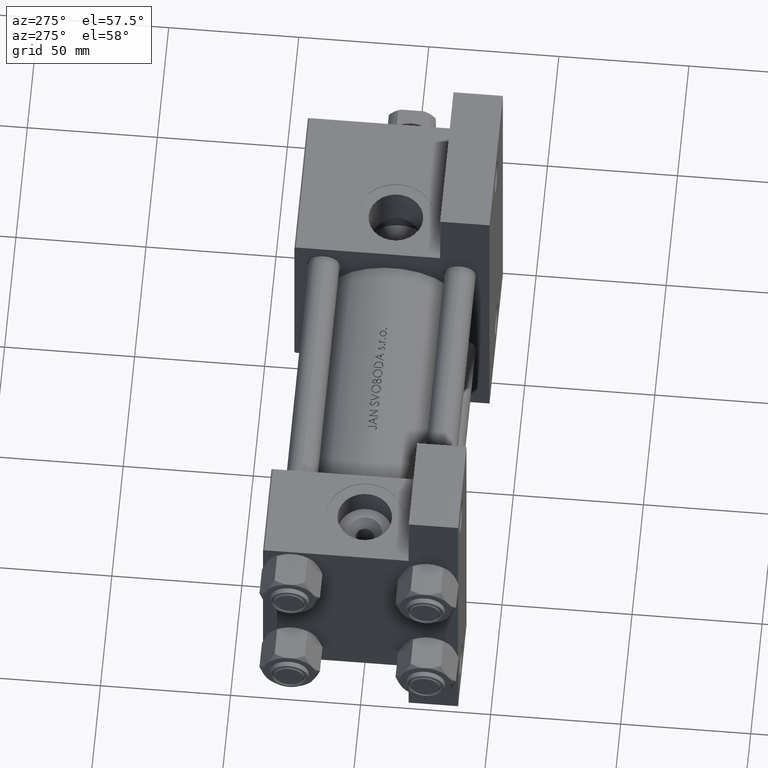
[diagram: clean part render]
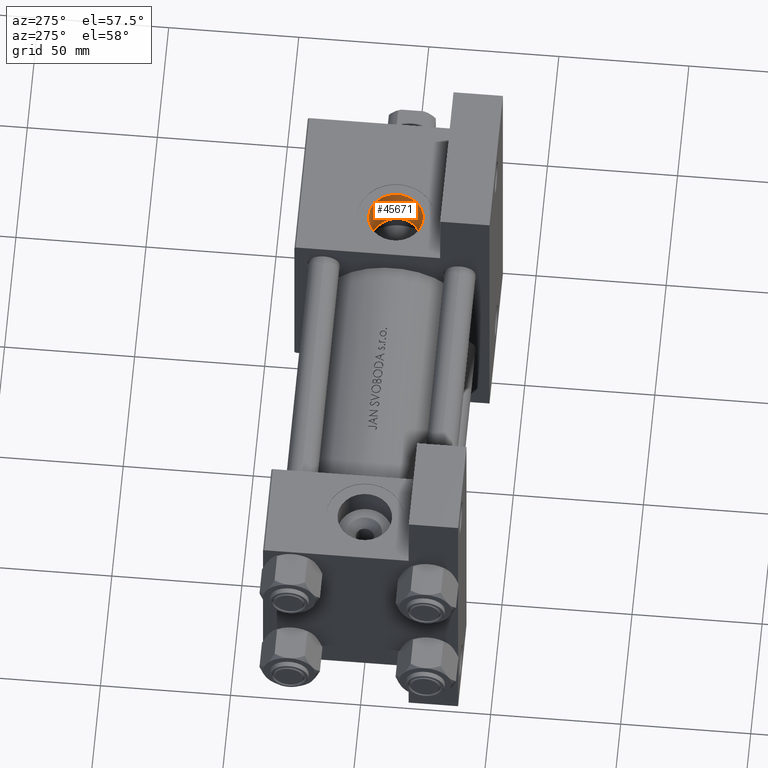
[diagram: same view with one face highlighted and labeled with its STEP entity id]
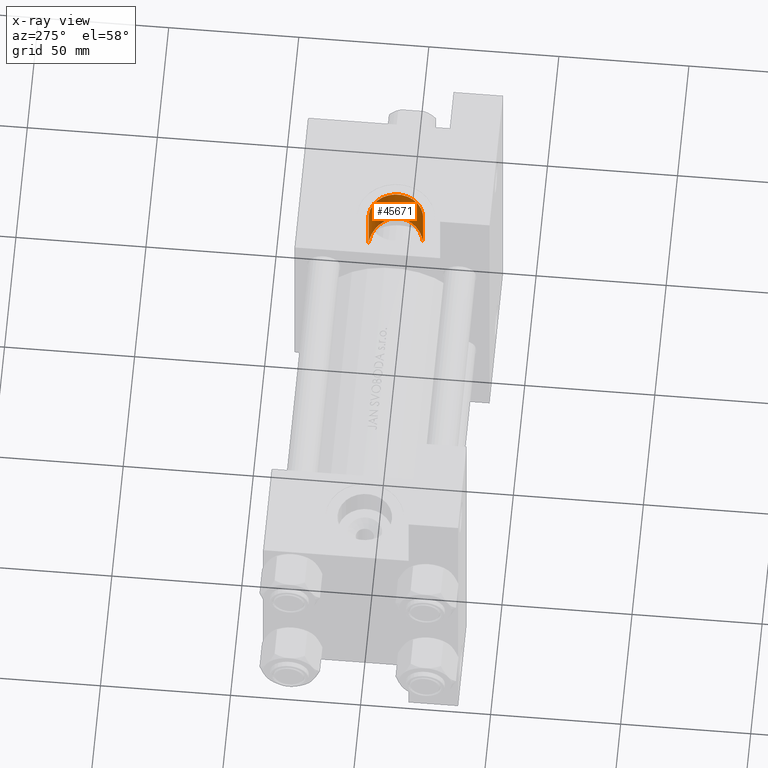
[diagram: x-ray of the same camera — body ghosted, the highlighted face saturated]
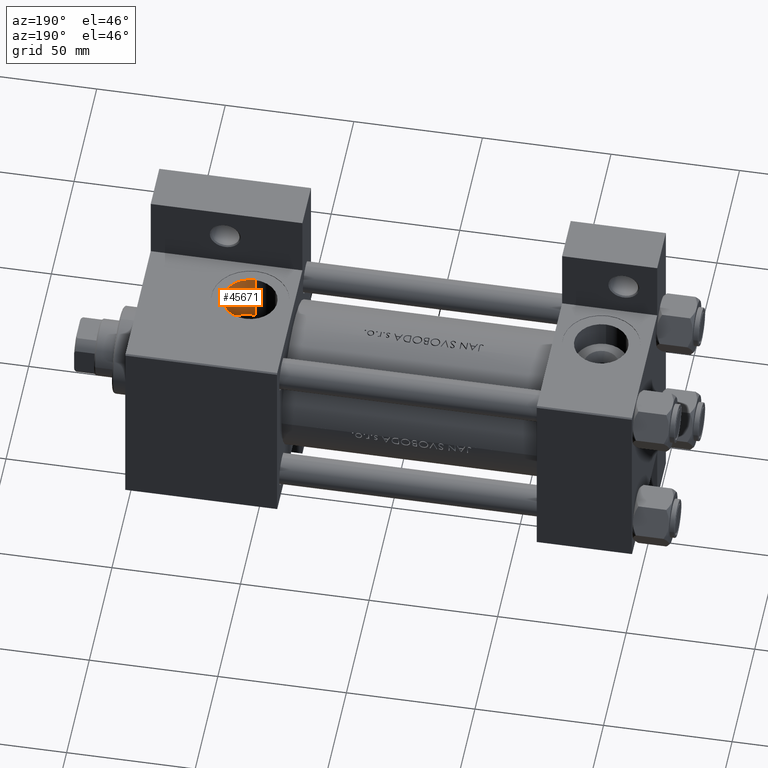
[diagram: same view with one face highlighted and labeled with its STEP entity id]
A machine part, auxiliary view. The second image highlights one B-rep face of the part: STEP entity #45671.
The next image is the same camera in x-ray: the body ghosted, the highlighted face saturated — about 0% of this face is hidden behind the body in this view.
A second angle (auxiliary view) of the same face is appended — the face is thin or edge-on in the first view.
In plain terms, the highlighted cylindrical surface (edge-blend (fillet) strip) has radius 10.48 mm, axis along (-0, -0, 1).
Its self-contained STEP definition (entity closure, byte-faithful):
#735 = CARTESIAN_POINT ( 'NONE',  ( 155.0000000000000284, -17.31154528053461306, 10.47999999999999154 ) ) ;
#1462 = CARTESIAN_POINT ( 'NONE',  ( 165.3507038963579134, -20.46901633175582447, -1.677836523642098010 ) ) ;
#1701 = CARTESIAN_POINT ( 'NONE',  ( 155.0000000000000284, -17.90669148670408362, -10.47999999999998089 ) ) ;
#1955 = CARTESIAN_POINT ( 'NONE',  ( 165.4583245133797220, -20.46430137750835954, 0.7579182357777466406 ) ) ;
#2195 = CARTESIAN_POINT ( 'NONE',  ( 165.4669051482524935, -20.50255402113294068, -0.6300211231001662249 ) ) ;
#5183 = CARTESIAN_POINT ( 'NONE',  ( 161.9208345979154444, -18.70786800614511236, 7.898040897294844598 ) ) ;
#5426 = CARTESIAN_POINT ( 'NONE',  ( 165.3852102648228595, -20.41012014665353291, 1.448585321857994712 ) ) ;
#5927 = CARTESIAN_POINT ( 'NONE',  ( 165.3311065042815642, -20.37409322011633606, 1.794586109409245456 ) ) ;
#6174 = CARTESIAN_POINT ( 'NONE',  ( 158.4291236246858716, -18.20648317701849095, -9.926633415679276595 ) ) ;
#6520 = CARTESIAN_POINT ( 'NONE',  ( 155.0000000000000284, 37.50100000000000477, 10.47999999999999687 ) ) ;
#7361 = LINE ( 'NONE', #45464, #24880 ) ;
#8370 = VERTEX_POINT ( 'NONE', #16547 ) ;
#8432 = CARTESIAN_POINT ( 'NONE',  ( 157.7588417203788538, -17.52693762274574851, 10.13402779325157077 ) ) ;
#8686 = CARTESIAN_POINT ( 'NONE',  ( 155.0000000000000284, -17.90669148670408362, -10.47999999999998089 ) ) ;
#8885 = EDGE_CURVE ( 'NONE', #40370, #23764, #7361, .T. ) ;
#9899 = CARTESIAN_POINT ( 'NONE',  ( 165.1488622720015655, -20.39261420473474473, -2.705221023230776289 ) ) ;
#10144 = CARTESIAN_POINT ( 'NONE',  ( 163.8632463434475710, -19.57285682509593272, 5.602446212762891342 ) ) ;
#10529 = FACE_OUTER_BOUND ( 'NONE', #31873, .T. ) ;
#13141 = CARTESIAN_POINT ( 'NONE',  ( 161.3953719826940016, -18.50579674927558571, 8.329556230503516900 ) ) ;
#13344 = CARTESIAN_POINT ( 'NONE',  ( 155.0000000000000284, -37.29999999999999716, 10.47999999999998977 ) ) ;
#13629 = CARTESIAN_POINT ( 'NONE',  ( 163.5247630629396554, -19.72096722719661344, -6.105281524917115732 ) ) ;
#13860 = DIRECTION ( 'NONE',  ( 0.000000000000000000, -1.000000000000000000, -8.673617379884036705E-17 ) ) ;
#13878 = CARTESIAN_POINT ( 'NONE',  ( 162.6611621740133558, -19.38999619374664363, -7.159076384942104632 ) ) ;
#14767 = CYLINDRICAL_SURFACE ( 'NONE', #40880, 10.47999999999998622 ) ;
#15909 = CARTESIAN_POINT ( 'NONE',  ( 155.3470210746793327, -17.31154528053460595, 10.47999999999999510 ) ) ;
#16547 = CARTESIAN_POINT ( 'NONE',  ( 155.0000000000000284, -17.31154528053461306, 10.47999999999999154 ) ) ;
#16627 = CARTESIAN_POINT ( 'NONE',  ( 164.5516556862485515, -20.14238090880650134, -4.326202217588882348 ) ) ;
#17122 = CARTESIAN_POINT ( 'NONE',  ( 156.4044395936603564, -17.95581939429250085, -10.39141979412303840 ) ) ;
#17280 = CIRCLE ( 'NONE', #37966, 10.47999999999998622 ) ;
#17368 = CARTESIAN_POINT ( 'NONE',  ( 162.8679744497729587, -19.10325731143032968, 6.954996736502839561 ) ) ;
#19087 = ORIENTED_EDGE ( 'NONE', *, *, #31887, .T. ) ;
#20355 = CARTESIAN_POINT ( 'NONE',  ( 165.4819445000526343, -20.50178181377810915, -0.2822101851753042179 ) ) ;
#20843 = CARTESIAN_POINT ( 'NONE',  ( 156.7534701870718550, -17.98521153983802634, -10.33810977386607100 ) ) ;
#21096 = CARTESIAN_POINT ( 'NONE',  ( 165.1175830810126115, -20.24111318549747551, 2.820020607438576743 ) ) ;
#21347 = CARTESIAN_POINT ( 'NONE',  ( 157.7750123670571440, -18.09812027575558702, -10.12979723076933425 ) ) ;
#21495 = DIRECTION ( 'NONE',  ( -0.000000000000000000, -1.000000000000000000, -8.673617379884036705E-17 ) ) ;
#22543 = DIRECTION ( 'NONE',  ( -0.000000000000000000, -1.000000000000000000, -8.673617379884036705E-17 ) ) ;
#22875 = EDGE_CURVE ( 'NONE', #23764, #30438, #17280, .T. ) ;
#23764 = VERTEX_POINT ( 'NONE', #27891 ) ;
#24585 = CARTESIAN_POINT ( 'NONE',  ( 163.9026386617618414, -19.87300753805846654, -5.539771893847126094 ) ) ;
#24880 = VECTOR ( 'NONE', #22543, 1000.000000000000000 ) ;
#25080 = CARTESIAN_POINT ( 'NONE',  ( 161.9416544847751140, -19.13207627753017093, -7.880695095096321268 ) ) ;
#25549 = DIRECTION ( 'NONE',  ( 0.000000000000000000, 0.000000000000000000, -1.000000000000000000 ) ) ;
#25930 = LINE ( 'NONE', #6520, #29694 ) ;
#27360 = CARTESIAN_POINT ( 'NONE',  ( 156.7410054315664070, -17.39963274831551132, 10.34017078318249361 ) ) ;
#27891 = CARTESIAN_POINT ( 'NONE',  ( 155.0000000000000284, -37.29999999999999716, -10.47999999999998266 ) ) ;
#28082 = CARTESIAN_POINT ( 'NONE',  ( 162.8913372837819793, -19.47582360453931116, -6.904560610471913940 ) ) ;
#28325 = CARTESIAN_POINT ( 'NONE',  ( 164.9485359727863738, -20.30891902702526153, -3.366903607565236989 ) ) ;
#28569 = CARTESIAN_POINT ( 'NONE',  ( 164.3662177968320179, -19.82832408839749760, 4.713768309937338863 ) ) ;
#28810 = CARTESIAN_POINT ( 'NONE',  ( 163.3225662003738137, -19.64111042044597966, -6.378170050295204341 ) ) ;
#29694 = VECTOR ( 'NONE', #45112, 1000.000000000000000 ) ;
#30438 = VERTEX_POINT ( 'NONE', #13344 ) ;
#31099 = CARTESIAN_POINT ( 'NONE',  ( 155.6954312938289604, -17.32248566803110990, 10.46281023584331393 ) ) ;
#31826 = CARTESIAN_POINT ( 'NONE',  ( 164.0783182432222702, -19.94519646484593167, -5.247152792081113404 ) ) ;
#31873 = EDGE_LOOP ( 'NONE', ( #32204, #19087, #35191, #44307 ) ) ;
#31887 = EDGE_CURVE ( 'NONE', #8370, #40370, #36793, .T. ) ;
#32204 = ORIENTED_EDGE ( 'NONE', *, *, #43745, .F. ) ;
#32563 = CARTESIAN_POINT ( 'NONE',  ( 164.5136165929028493, -19.90621515629138827, 4.408684660160838042 ) ) ;
#32811 = CARTESIAN_POINT ( 'NONE',  ( 160.2983228447829163, -18.62849765410346947, -9.067371222007592380 ) ) ;
#35191 = ORIENTED_EDGE ( 'NONE', *, *, #8885, .T. ) ;
#35565 = CARTESIAN_POINT ( 'NONE',  ( 163.2943842801270193, -19.29805340160766747, 6.441284550439725365 ) ) ;
#36054 = CARTESIAN_POINT ( 'NONE',  ( 165.4015008588858677, -20.48626732390679805, -1.327331865308766901 ) ) ;
#36303 = CARTESIAN_POINT ( 'NONE',  ( 165.4776551375226745, -20.48265569949337461, 0.4117595292702391774 ) ) ;
#36542 = CARTESIAN_POINT ( 'NONE',  ( 155.3524141148301396, -17.90669148670408362, -10.47999999999997556 ) ) ;
#36793 = B_SPLINE_CURVE_WITH_KNOTS ( 'NONE', 3,
 ( #735, #15909, #31099, #46288, #27360, #8432, #38805, #44265, #44017, #13141, #5183, #17368, #35565, #10144, #43274, #28569, #32563, #39293, #21096, #5927, #5426, #1955, #36303, #20355, #2195, #36054, #1462, #9899, #28325, #16627, #47764, #31826, #24585, #13629, #28810, #28082, #13878, #25080, #40277, #32811, #40025, #6174, #21347, #20843, #17122, #39531, #36542, #1701 ),
 .UNSPECIFIED., .F., .F.,
 ( 4, 2, 2, 2, 2, 2, 2, 2, 2, 2, 2, 2, 2, 2, 2, 2, 2, 2, 2, 2, 2, 2, 2, 4 ),
 ( 0.03337172289375579803, 0.03441233523662728944, 0.03545294757949878778, 0.03753417226524177058, 0.03961539695098476033, 0.04169662163672774313, 0.04377784632247073981, 0.04481845866534223122, 0.04585907100821372262, 0.04794029569395671930, 0.04898090803682821071, 0.05002152037969970211, 0.05106213272257120045, 0.05210274506544269879, 0.05418396975118568160, 0.05522458209405717994, 0.05626519443692867134, 0.05730580677980016968, 0.05834641912267166108, 0.06042764380841469940, 0.06250886849415773772, 0.06459009317990078991, 0.06563070552277235070, 0.06667131786564391149 ),
 .UNSPECIFIED. ) ;
#37966 = AXIS2_PLACEMENT_3D ( 'NONE', #47500, #13860, #25549 ) ;
#38805 = CARTESIAN_POINT ( 'NONE',  ( 158.4159050215026525, -17.65012615064442869, 9.931528811289364711 ) ) ;
#39293 = CARTESIAN_POINT ( 'NONE',  ( 164.9112922687108096, -20.12166452589491428, 3.472274471029884957 ) ) ;
#39531 = CARTESIAN_POINT ( 'NONE',  ( 155.7047145583875079, -17.91665127801143953, -10.46219065497899692 ) ) ;
#40025 = CARTESIAN_POINT ( 'NONE',  ( 159.6885837709134535, -18.47081169218747831, -9.397559365377063045 ) ) ;
#40277 = CARTESIAN_POINT ( 'NONE',  ( 161.4217440813015685, -18.95863385658994815, -8.309672003124298101 ) ) ;
#40370 = VERTEX_POINT ( 'NONE', #8686 ) ;
#40880 = AXIS2_PLACEMENT_3D ( 'NONE', #41400, #21495, #46386 ) ;
#41400 = CARTESIAN_POINT ( 'NONE',  ( 155.0000000000000284, 37.50100000000000477, 9.974746723040443104E-15 ) ) ;
#43274 = CARTESIAN_POINT ( 'NONE',  ( 164.0415136392023783, -19.66186875787549226, 5.310054482731721315 ) ) ;
#43745 = EDGE_CURVE ( 'NONE', #8370, #30438, #25930, .T. ) ;
#44017 = CARTESIAN_POINT ( 'NONE',  ( 160.2787600379286914, -18.12953982762253347, 9.078379935655647159 ) ) ;
#44265 = CARTESIAN_POINT ( 'NONE',  ( 159.6848851208464168, -17.95378683072778259, 9.399761861338273405 ) ) ;
#44307 = ORIENTED_EDGE ( 'NONE', *, *, #22875, .T. ) ;
#45112 = DIRECTION ( 'NONE',  ( -0.000000000000000000, -1.000000000000000000, -8.673617379884036705E-17 ) ) ;
#45464 = CARTESIAN_POINT ( 'NONE',  ( 155.0000000000000284, 37.50100000000000477, -10.47999999999997556 ) ) ;
#45671 = ADVANCED_FACE ( 'NONE', ( #10529 ), #14767, .F. ) ;
#46288 = CARTESIAN_POINT ( 'NONE',  ( 156.3951252308203834, -17.36667489365846606, 10.39267281819420319 ) ) ;
#46386 = DIRECTION ( 'NONE',  ( 0.000000000000000000, 0.000000000000000000, -1.000000000000000000 ) ) ;
#47500 = CARTESIAN_POINT ( 'NONE',  ( 155.0000000000000284, -37.29999999999999716, 3.486794186713383443E-15 ) ) ;
#47764 = CARTESIAN_POINT ( 'NONE',  ( 164.4025389929009009, -20.07976061505709708, -4.641199740976985844 ) ) ;